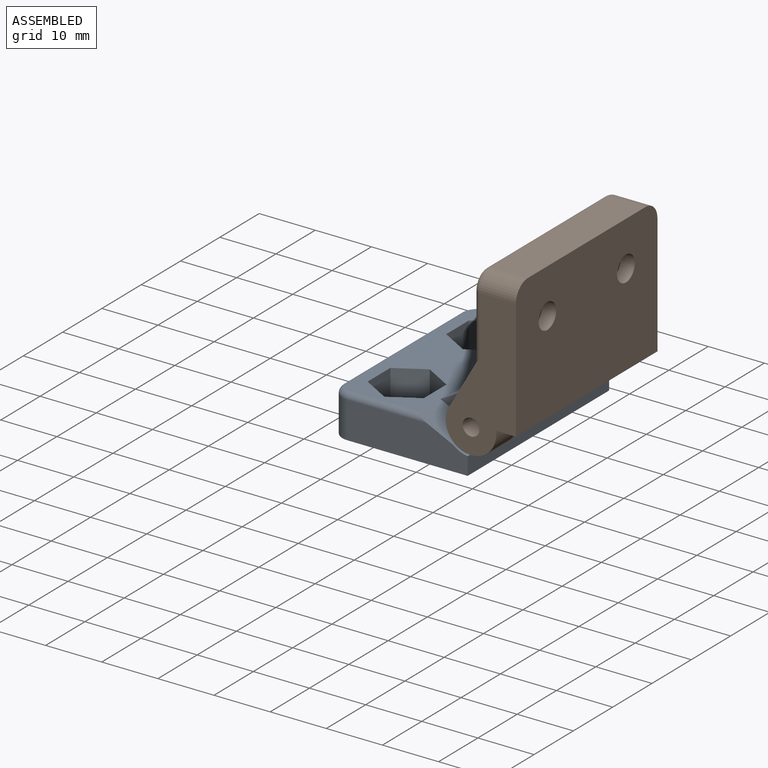
[diagram: assembled view]
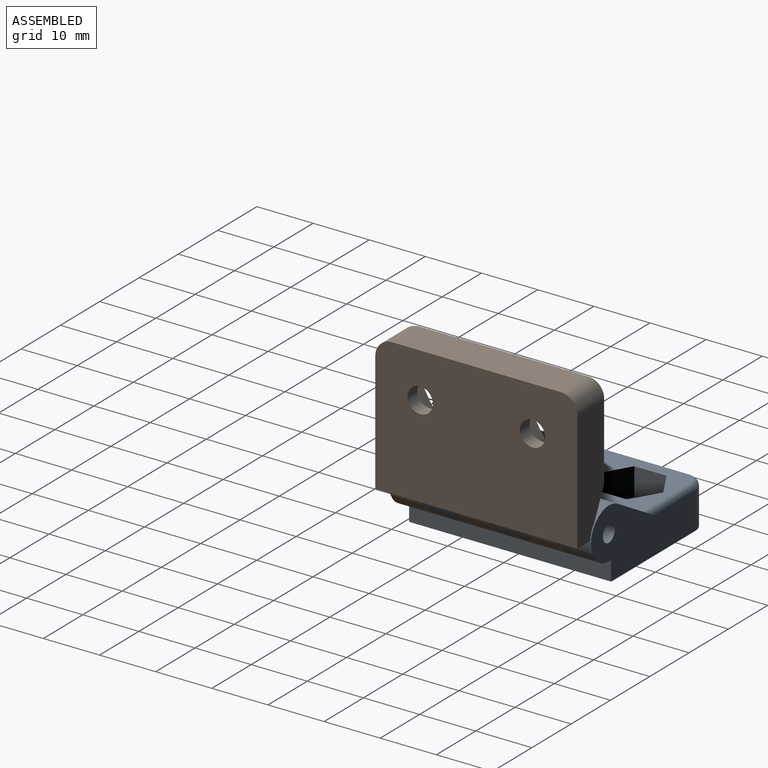
[diagram: assembled view, second angle]
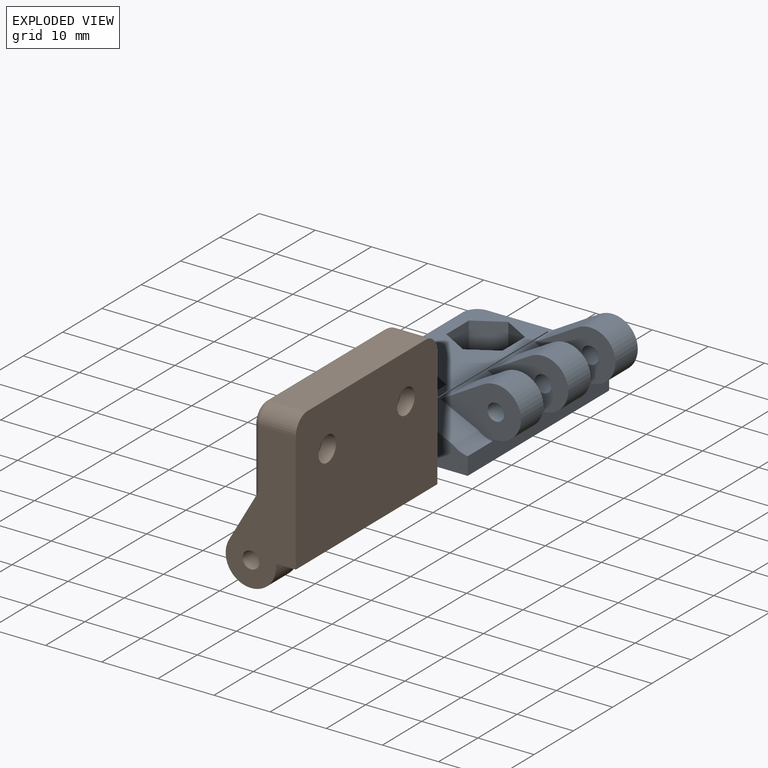
[diagram: exploded view]
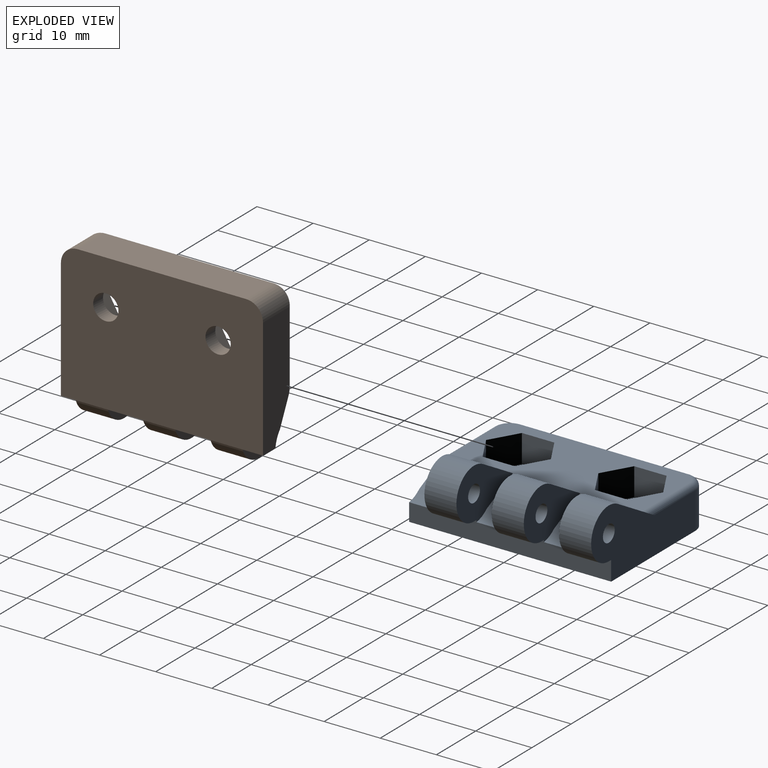
[diagram: exploded view, second angle]
ASSEMBLY  parts=2 mates=2
PART A: 52 faces, bbox 29.7x12.5x36.5 mm
  f0: plane 34x14.13mm, normal (0,1,0), area 305.6mm2, adj f3,f8,f12,f22,f26,f30,f33,f34
  f1: cylinder r=2.25mm len=4.5mm, axis (0,1,0), area 35.3mm2, adj f17,f45
  f2: cylinder r=2.25mm len=4.5mm, axis (0,1,0), area 35.3mm2, adj f17,f38
  f3: plane 9.35x5.7mm, normal (-0.5,0.87,0), area 50.6mm2, adj f0,f4,f18,f27,f37
  f4: cylinder r=4.5mm len=9mm, axis (0,0,1), area 94mm2, adj f3,f5,f18,f27
  f5: plane 5.7x0.6mm, normal (0,-1,0), area 3.4mm2, adj f4,f7,f18,f27
  f6: cylinder r=1.5mm len=5.7mm, axis (0,0,1), area 53.7mm2, adj f18,f27
  f7: plane 36x3.5mm, normal (1,0,0), area 119.5mm2, adj f5,f10,f14,f17,f18,f19,f20,f21
  f8: plane 7.62x5.7mm, normal (-0.5,0.87,0), area 50.1mm2, adj f0,f9,f23,f28
  f9: cylinder r=4.5mm len=9mm, axis (0,0,1), area 94mm2, adj f8,f10,f23,f28
  f10: plane 5.7x0.6mm, normal (0,-1,0), area 3.4mm2, adj f7,f9,f23,f28
  f11: cylinder r=1.5mm len=5.7mm, axis (0,0,1), area 53.7mm2, adj f23,f28
  f12: plane 7.62x5.7mm, normal (-0.5,0.87,0), area 50.1mm2, adj f0,f13,f20,f24
  f13: cylinder r=4.5mm len=9mm, axis (0,0,1), area 94mm2, adj f12,f14,f20,f24
  f14: plane 5.7x0.6mm, normal (0,-1,0), area 3.4mm2, adj f7,f13,f20,f24
  f15: cylinder r=1.5mm len=5.7mm, axis (0,0,1), area 53.7mm2, adj f20,f24
  f16: plane 30x6.5mm, normal (-1,0,0), area 195mm2, adj f17,f31,f32,f35
  f17: plane 36x24.4mm, normal (0,-1,0), area 842.7mm2, adj f1,f2,f7,f16,f18,f19,f31,f32
  f18: plane 26.5x12.5mm, normal (0,0,-1), area 203.9mm2, adj f3,f4,f5,f6,f7,f17,f31,f37
  f19: plane 21.4x6.5mm, normal (0,0,1), area 126.5mm2, adj f7,f17,f21,f22,f32,f33
  f20: plane 14.37x9.34mm, normal (0,0,1), area 75.5mm2, adj f7,f12,f13,f14,f15,f21,f22
  f21: cylinder r=4.88mm len=6.3mm, axis (0,0,1), area 18.1mm2, adj f7,f19,f20,f22
  f22: plane 6.67x6.3mm, normal (0.43,0.9,0), area 46.1mm2, adj f0,f19,f20,f21,f33
  f23: plane 14.37x9.34mm, normal (0,0,1), area 75.5mm2, adj f7,f8,f9,f10,f11,f25,f26
  f24: plane 14.37x9.34mm, normal (0,0,-1), area 75.5mm2, adj f7,f12,f13,f14,f15,f25,f26
  f25: cylinder r=4.88mm len=6.3mm, axis (0,0,1), area 18.1mm2, adj f7,f23,f24,f26
  f26: plane 6.67x6.3mm, normal (0.43,0.9,0), area 46.6mm2, adj f0,f23,f24,f25
  f27: plane 14.37x9.34mm, normal (0,0,1), area 75.5mm2, adj f3,f4,f5,f6,f7,f29,f30
  f28: plane 14.37x9.34mm, normal (0,0,-1), area 75.5mm2, adj f7,f8,f9,f10,f11,f29,f30
  f29: cylinder r=4.88mm len=6.3mm, axis (0,0,1), area 18.1mm2, adj f7,f27,f28,f30
  f30: plane 6.67x6.3mm, normal (0.43,0.9,0), area 46.6mm2, adj f0,f27,f28,f29
  f31: cylinder r=3mm len=6.5mm, axis (0,1,0), area 30.6mm2, adj f16,f17,f18,f36
  f32: cylinder r=3mm len=6.5mm, axis (0,-1,0), area 30.6mm2, adj f16,f17,f19,f34
  f33: cylinder r=1mm len=14.23mm, axis (-1,0,0), area 20.3mm2, adj f0,f19,f22,f34
  f34: torus R=2mm, axis (0,1,0), area 6.5mm2, adj f0,f32,f33,f35
  f35: cylinder r=1mm len=30mm, axis (0,0,1), area 47.1mm2, adj f0,f16,f34,f36
  f36: torus R=2mm, axis (0,1,0), area 6.5mm2, adj f0,f31,f35,f37
  f37: cylinder r=1mm len=12.13mm, axis (1,0,0), area 18.1mm2, adj f0,f3,f18,f36
  f38: plane 11.55x10mm, normal (0,1,0), area 70.7mm2, adj f2,f39,f40,f41,f42,f43,f44
  f39: plane 5.77x5mm, normal (1,0,0), area 28.9mm2, adj f0,f38,f40,f44
  f40: plane 5x5mm, normal (0.5,0,-0.87), area 28.9mm2, adj f0,f38,f39,f41
  f41: plane 5x5mm, normal (-0.5,0,-0.87), area 28.9mm2, adj f0,f38,f40,f42
  f42: plane 5.77x5mm, normal (-1,0,0), area 28.9mm2, adj f0,f38,f41,f43
  f43: plane 5x5mm, normal (-0.5,0,0.87), area 28.9mm2, adj f0,f38,f42,f44
  f44: plane 5x5mm, normal (0.5,0,0.87), area 28.9mm2, adj f0,f38,f39,f43
  f45: plane 11.55x10mm, normal (0,1,0), area 70.7mm2, adj f1,f46,f47,f48,f49,f50,f51
  f46: plane 5.77x5mm, normal (1,0,0), area 28.9mm2, adj f0,f45,f47,f51
  f47: plane 5x5mm, normal (0.5,0,-0.87), area 28.9mm2, adj f0,f45,f46,f48
  f48: plane 5x5mm, normal (-0.5,0,-0.87), area 28.9mm2, adj f0,f45,f47,f49
  f49: plane 5.77x5mm, normal (-1,0,0), area 28.9mm2, adj f0,f45,f48,f50
  f50: plane 5x5mm, normal (-0.5,0,0.87), area 28.9mm2, adj f0,f45,f49,f51
  f51: plane 5x5mm, normal (0.5,0,0.87), area 28.9mm2, adj f0,f45,f46,f50
PART B: same geometry as A
PLACE A rot(axis=(1,0,0),90deg) t=(-26.43,-18.29,-27.67)mm
PLACE B rot(axis=(-0.58,0.58,0.58),120deg) t=(-7.43,17.71,-8.67)mm
MATE planar B.f18 <-> A.f19  axis (0,-1,0) through (-8.29,-18.29,-15.52)mm
MATE cylindrical A.f4 <-> B.f4  axis (0,-1,0) through (-11.43,-11.99,-23.67)mm
